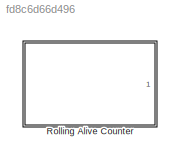
MODEL slx_fd8c6d66d496
KIND library
CONFIG AbsTol = auto
CONFIG EnableMultiTasking = off
CONFIG FixedStep = auto
CONFIG MaxStep = auto
CONFIG MinStep = auto
CONFIG RelTol = 1e-3
CONFIG SampleTimeConstraint = Unconstrained
CONFIG Solver = VariableStepAuto
CONFIG SolverName = VariableStepAuto
CONFIG StartTime = 0.0
CONFIG StopTime = 10.0
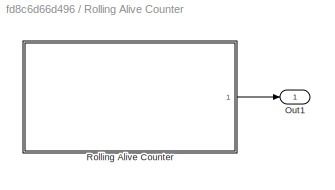
BLOCK [SubSystem] Rolling Alive Counter
  Ports = [0, 1]
  RequestExecContextInheritance = off
  Variant = off
BLOCK [Outport] Rolling Alive Counter/Out1
  IconDisplay = Port number
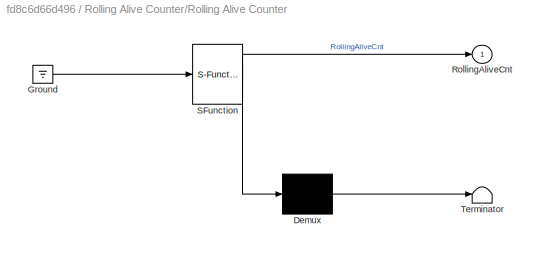
BLOCK [SubSystem] Rolling Alive Counter/Rolling Alive Counter
  ErrorFcn = Stateflow.Translate.translate
  PermitHierarchicalResolution = ExplicitOnly
  Ports = [0, 1]
  RequestExecContextInheritance = off
  SFBlockType = Chart
  TreatAsAtomicUnit = on
  Variant = off
BLOCK [Demux] Rolling Alive Counter/Rolling Alive Counter/ Demux 
  Outputs = 1
  Ports = [1, 1]
BLOCK [Ground] Rolling Alive Counter/Rolling Alive Counter/ Ground 
BLOCK [S-Function] Rolling Alive Counter/Rolling Alive Counter/ SFunction 
  EnableBusSupport = off
  FunctionName = sf_sfun
  PortCounts = [1 2]
  Ports = [1, 2]
  SFcnIsStateOwnerBlock = off
  SFunctionDeploymentMode = off
  Tag = Stateflow S-Function RollingAliveCounter 68
BLOCK [Terminator] Rolling Alive Counter/Rolling Alive Counter/ Terminator 
BLOCK [Outport] Rolling Alive Counter/Rolling Alive Counter/RollingAliveCnt
  IconDisplay = Port number
LINE Rolling Alive Counter/Rolling Alive Counter:1 -> Rolling Alive Counter/Out1:1
CHART Rolling Alive Counter/Rolling Alive Counter states=5 transitions=5
  STATE_LABEL 'RollingAliveCounter'
  STATE_LABEL 'Count1\nen: RollingAliveCnt=0'
  STATE_LABEL 'Count2\nen: RollingAliveCnt=1'
  STATE_LABEL 'Count3\nen: RollingAliveCnt=2'
  STATE_LABEL 'Count4\nen: RollingAliveCnt=3'
  STATE_LABEL 'after(0.01,sec)'
  STATE_LABEL 'after(0.01,sec)'
  STATE_LABEL 'after(0.01,sec)'
  STATE_LABEL 'after(0.01,sec)'
  STATE_LABEL 'Count1\nen: RollingAliveCnt=0'
  STATE_LABEL 'Count2\nen: RollingAliveCnt=1'
  STATE_LABEL 'Count3\nen: RollingAliveCnt=2'
  STATE_LABEL 'Count4\nen: RollingAliveCnt=3'
